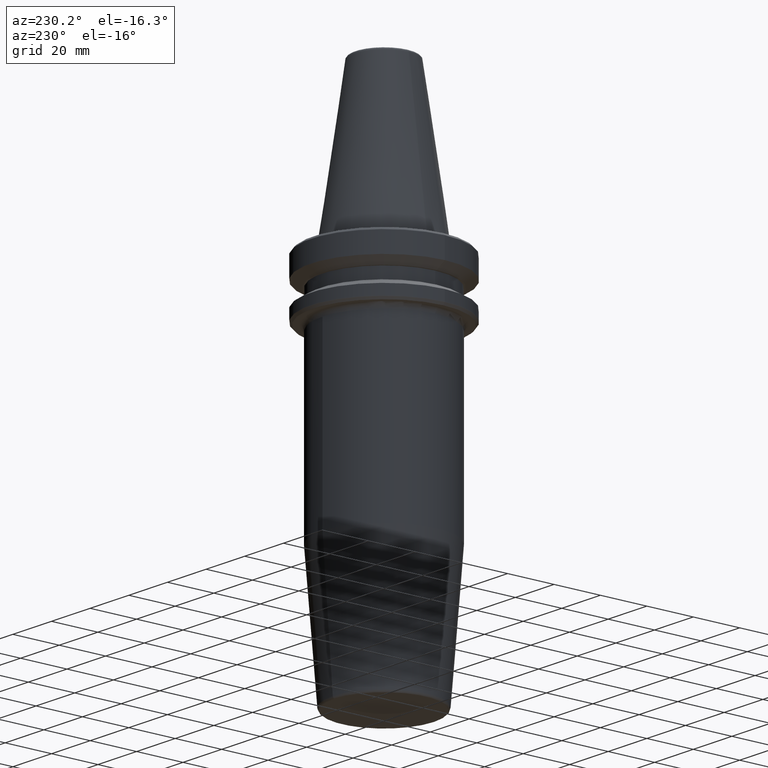
[diagram: clean part render]
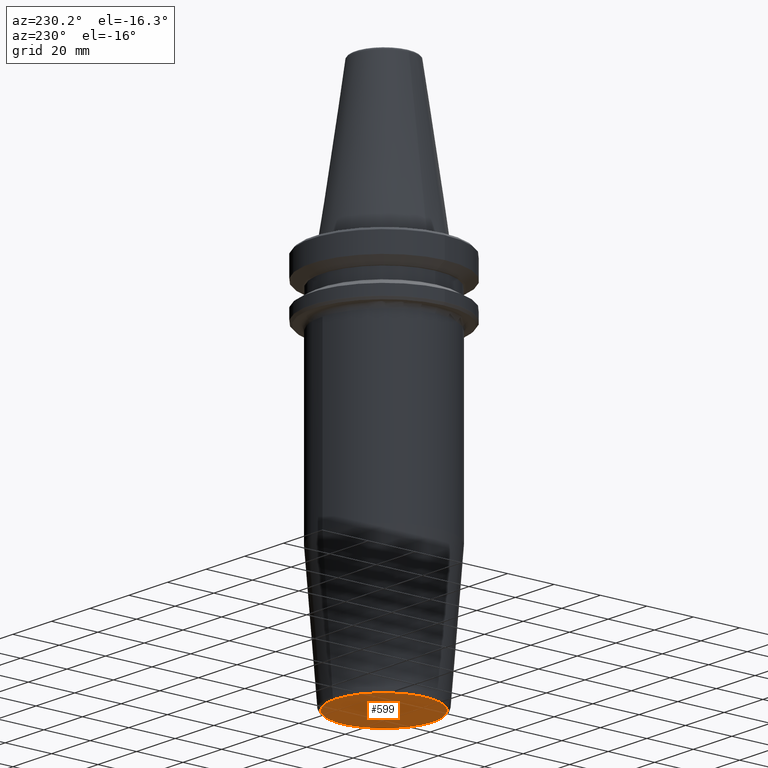
[diagram: same view with one face highlighted and labeled with its STEP entity id]
A machine part, auxiliary view. The second image highlights one B-rep face of the part: STEP entity #599.
In plain terms, the highlighted planar face has unit normal (0, -0, 1).
Its self-contained STEP definition (entity closure, byte-faithful):
#33 = CARTESIAN_POINT ( 'NONE',  ( 2.642061353535566800E-015, -21.07560950834176000, -160.0000000000000000 ) ) ;
#63 = CARTESIAN_POINT ( 'NONE',  ( 0.0000000000000000000, 6.007534505229968300E-032, -160.0000000000000000 ) ) ;
#75 = VERTEX_POINT ( 'NONE', #171 ) ;
#94 = ORIENTED_EDGE ( 'NONE', *, *, #504, .T. ) ;
#133 = CARTESIAN_POINT ( 'NONE',  ( 0.0000000000000000000, 1.004210375300829800E-014, -160.0000000000000000 ) ) ;
#137 = EDGE_CURVE ( 'NONE', #75, #1012, #319, .T. ) ;
#171 = CARTESIAN_POINT ( 'NONE',  ( 0.0000000000000000000, 21.07560950834178100, -160.0000000000000000 ) ) ;
#172 = AXIS2_PLACEMENT_3D ( 'NONE', #133, #541, #1049 ) ;
#270 = DIRECTION ( 'NONE',  ( 0.0000000000000000000, -7.550453949630299600E-017, 1.000000000000000000 ) ) ;
#301 = CARTESIAN_POINT ( 'NONE',  ( 0.0000000000000000000, 1.004210375300829800E-014, -160.0000000000000000 ) ) ;
#319 = CIRCLE ( 'NONE', #1086, 21.07560950834177000 ) ;
#416 = DIRECTION ( 'NONE',  ( 0.0000000000000000000, 1.000000000000000000, 0.0000000000000000000 ) ) ;
#466 = PLANE ( 'NONE',  #841 ) ;
#504 = EDGE_CURVE ( 'NONE', #1012, #75, #1187, .T. ) ;
#519 = DIRECTION ( 'NONE',  ( -0.0000000000000000000, 7.550453949630299600E-017, -1.000000000000000000 ) ) ;
#541 = DIRECTION ( 'NONE',  ( -0.0000000000000000000, 7.550453949630299600E-017, -1.000000000000000000 ) ) ;
#599 = ADVANCED_FACE ( 'NONE', ( #1245 ), #466, .F. ) ;
#793 = ORIENTED_EDGE ( 'NONE', *, *, #137, .T. ) ;
#841 = AXIS2_PLACEMENT_3D ( 'NONE', #63, #270, #955 ) ;
#909 = EDGE_LOOP ( 'NONE', ( #793, #94 ) ) ;
#955 = DIRECTION ( 'NONE',  ( 0.0000000000000000000, -1.000000000000000000, -7.550453949630299600E-017 ) ) ;
#1012 = VERTEX_POINT ( 'NONE', #33 ) ;
#1049 = DIRECTION ( 'NONE',  ( 0.0000000000000000000, 1.000000000000000000, 0.0000000000000000000 ) ) ;
#1086 = AXIS2_PLACEMENT_3D ( 'NONE', #301, #519, #416 ) ;
#1187 = CIRCLE ( 'NONE', #172, 21.07560950834177000 ) ;
#1245 = FACE_OUTER_BOUND ( 'NONE', #909, .T. ) ;